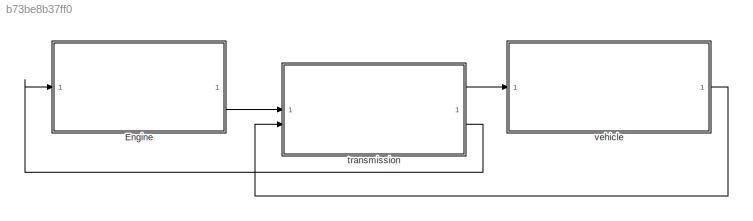
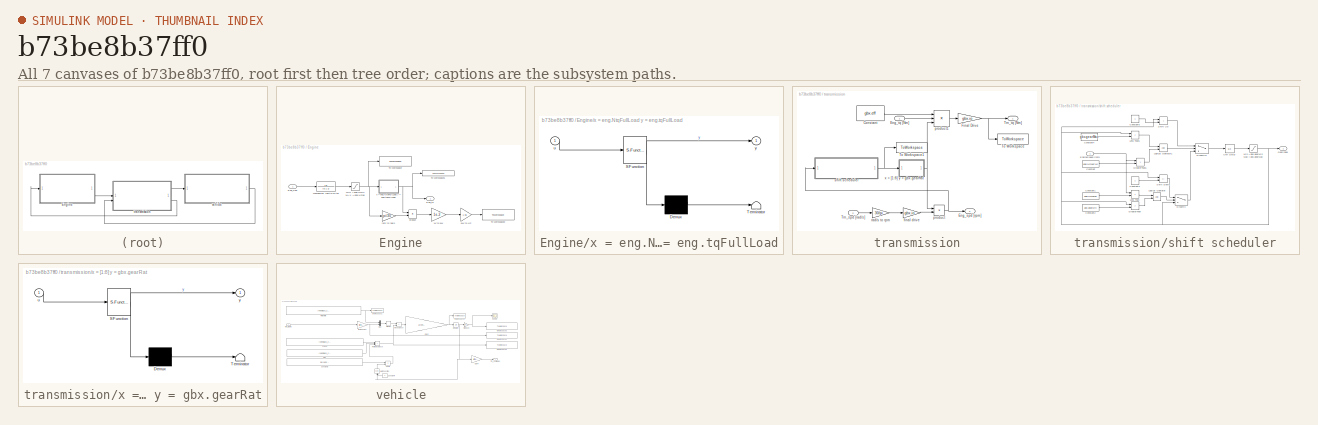
[diagram: thumbnail index - all 7 canvases of the model, root first then tree order]
MODEL slx_b73be8b37ff0
KIND model
CONFIG AbsTol = auto
CONFIG EnableMultiTasking = off
CONFIG FixedStep = auto
CONFIG MaxStep = auto
CONFIG MinStep = auto
CONFIG RelTol = 1e-3
CONFIG SampleTimeConstraint = Unconstrained
CONFIG SolverName = VariableStepAuto
CONFIG StartTime = 0.0
CONFIG StopTime = 50
BLOCK [SubSystem] Engine
BLOCK [Inport] Engine/Eng_Spd
BLOCK [Outport] Engine/Eng_tq
BLOCK [Saturate] Engine/MIN = eng.Nmin MAX = eng.Nmax
  LowerLimit = 1000
  UpperLimit = 6500
BLOCK [TransferFcn] Engine/Mechanical Inertia Filter
  Denominator = [0.1 1]
BLOCK [ToWorkspace] Engine/To Workspace
  FixptAsFi = on
  MaxDataPoints = inf
  SampleTime = -1
  SaveFormat = Timeseries
  VariableName = sEngSpd_rpm
BLOCK [ToWorkspace] Engine/To Workspace1
  FixptAsFi = on
  MaxDataPoints = inf
  SampleTime = -1
  SaveFormat = Timeseries
  VariableName = sEngTq_Nm
BLOCK [ToWorkspace] Engine/To Workspace2
  FixptAsFi = on
  MaxDataPoints = inf
  SampleTime = -1
  SaveFormat = Timeseries
  VariableName = sEngPwr_HP1
BLOCK [Gain] Engine/W to kW
  Gain = 1e-3
BLOCK [Gain] Engine/kW to HP
  Gain = 1.36
BLOCK [Product] Engine/product
BLOCK [Gain] Engine/rpm to rad//s
  Gain = pi/30
BLOCK [SubSystem] Engine/x = eng.NtqFullLoad y = eng.tqFullLoad
  ErrorFcn = Stateflow.Translate.translate
  LibrarySourceBlock = simulink/User-Defined\nFunctions/MATLAB Function
  PermitHierarchicalResolution = ExplicitOnly
  SFBlockType = MATLAB Function
  TreatAsAtomicUnit = on
BLOCK [Demux] Engine/x = eng.NtqFullLoad y = eng.tqFullLoad/ Demux 
  Outputs = 1
BLOCK [S-Function] Engine/x = eng.NtqFullLoad y = eng.tqFullLoad/ SFunction 
  EnableBusSupport = on
  FunctionName = sf_sfun
  PortCounts = [1 2]
  SFcnIsStateOwnerBlock = off
  SFunctionDeploymentMode = off
  Tag = Stateflow S-Function 2
BLOCK [Terminator] Engine/x = eng.NtqFullLoad y = eng.tqFullLoad/ Terminator 
BLOCK [Inport] Engine/x = eng.NtqFullLoad y = eng.tqFullLoad/u
BLOCK [Outport] Engine/x = eng.NtqFullLoad y = eng.tqFullLoad/y
BLOCK [SubSystem] transmission
BLOCK [Constant] transmission/Constant
  Value = gbx.eff
BLOCK [Outport] transmission/Eng_spd [rpm]
  Port = 2
BLOCK [Inport] transmission/Eng_tq [Nm]
BLOCK [Gain] transmission/Final Drive
  Gain = gbx.io
BLOCK [ToWorkspace] transmission/To Workspace
  FixptAsFi = on
  MaxDataPoints = inf
  SampleTime = -1
  SaveFormat = Timeseries
  VariableName = sTrnTq_Nm
BLOCK [ToWorkspace] transmission/To Workspace1
  FixptAsFi = on
  MaxDataPoints = inf
  SampleTime = -1
  SaveFormat = Timeseries
  VariableName = sGear
BLOCK [Inport] transmission/Trn_spd [rad//s]
  Port = 2
BLOCK [Outport] transmission/Trn_tq [Nm]
BLOCK [Gain] transmission/final drive
  Gain = gbx.io
BLOCK [Product] transmission/product
BLOCK [Product] transmission/product1
  Inputs = 3
BLOCK [Gain] transmission/rad//s to rpm
  Gain = 30/pi
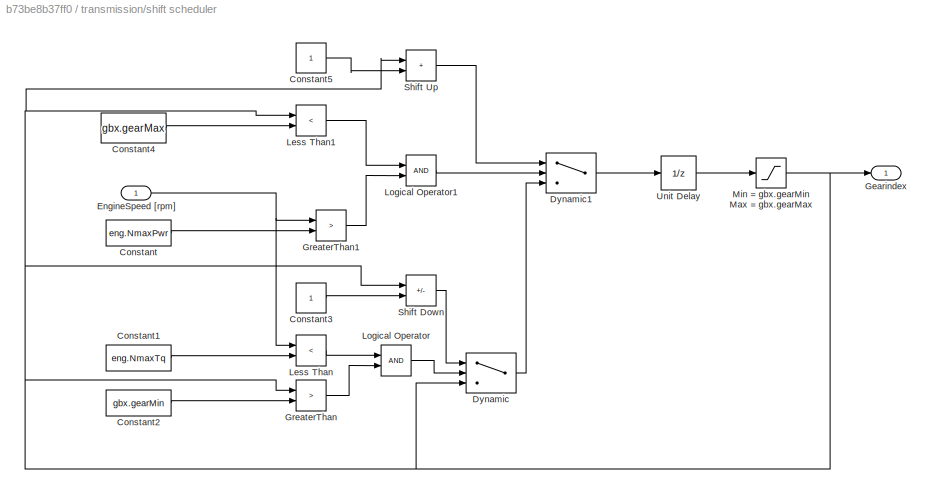
BLOCK [SubSystem] transmission/shift scheduler
BLOCK [Constant] transmission/shift scheduler/Constant
  Value = eng.NmaxPwr
BLOCK [Constant] transmission/shift scheduler/Constant1
  Value = eng.NmaxTq
BLOCK [Constant] transmission/shift scheduler/Constant2
  Value = gbx.gearMin
BLOCK [Constant] transmission/shift scheduler/Constant3
BLOCK [Constant] transmission/shift scheduler/Constant4
  Value = gbx.gearMax
BLOCK [Constant] transmission/shift scheduler/Constant5
BLOCK [Switch] transmission/shift scheduler/Dynamic
  Criteria = u2 > Threshold
  InputSameDT = off
  SaturateOnIntegerOverflow = off
BLOCK [Switch] transmission/shift scheduler/Dynamic1
  Criteria = u2 > Threshold
  InputSameDT = off
  SaturateOnIntegerOverflow = off
BLOCK [Inport] transmission/shift scheduler/EngineSpeed [rpm]
BLOCK [Outport] transmission/shift scheduler/Gearindex
BLOCK [RelationalOperator] transmission/shift scheduler/GreaterThan
  InputSameDT = off
  Operator = >
  OutDataTypeStr = boolean
  RndMeth = Simplest
BLOCK [RelationalOperator] transmission/shift scheduler/GreaterThan1
  InputSameDT = off
  Operator = >
  OutDataTypeStr = boolean
  RndMeth = Simplest
BLOCK [RelationalOperator] transmission/shift scheduler/Less Than
  InputSameDT = off
  Operator = <
  OutDataTypeStr = boolean
  RndMeth = Simplest
BLOCK [RelationalOperator] transmission/shift scheduler/Less Than1
  InputSameDT = off
  Operator = <
  OutDataTypeStr = boolean
  RndMeth = Simplest
BLOCK [Logic] transmission/shift scheduler/Logical Operator
  AllPortsSameDT = off
  OutDataTypeStr = boolean
BLOCK [Logic] transmission/shift scheduler/Logical Operator1
  AllPortsSameDT = off
  OutDataTypeStr = boolean
BLOCK [Saturate] transmission/shift scheduler/Min = gbx.gearMin Max = gbx.gearMax
  LowerLimit = 1
  UpperLimit = 8
BLOCK [Sum] transmission/shift scheduler/Shift Down
  IconShape = rectangular
  Inputs = +-
BLOCK [Sum] transmission/shift scheduler/Shift Up
  IconShape = rectangular
BLOCK [UnitDelay] transmission/shift scheduler/Unit Delay
  HasFrameUpgradeWarning = on
  SampleTime = -1
BLOCK [SubSystem] transmission/x = [1:8] y = gbx.gearRat
  ErrorFcn = Stateflow.Translate.translate
  LibrarySourceBlock = simulink/User-Defined\nFunctions/MATLAB Function
  PermitHierarchicalResolution = ExplicitOnly
  SFBlockType = MATLAB Function
  TreatAsAtomicUnit = on
BLOCK [Demux] transmission/x = [1:8] y = gbx.gearRat/ Demux 
  Outputs = 1
BLOCK [S-Function] transmission/x = [1:8] y = gbx.gearRat/ SFunction 
  EnableBusSupport = on
  FunctionName = sf_sfun
  PortCounts = [1 2]
  SFcnIsStateOwnerBlock = off
  SFunctionDeploymentMode = off
  Tag = Stateflow S-Function 1
BLOCK [Terminator] transmission/x = [1:8] y = gbx.gearRat/ Terminator 
BLOCK [Inport] transmission/x = [1:8] y = gbx.gearRat/u
BLOCK [Outport] transmission/x = [1:8] y = gbx.gearRat/y
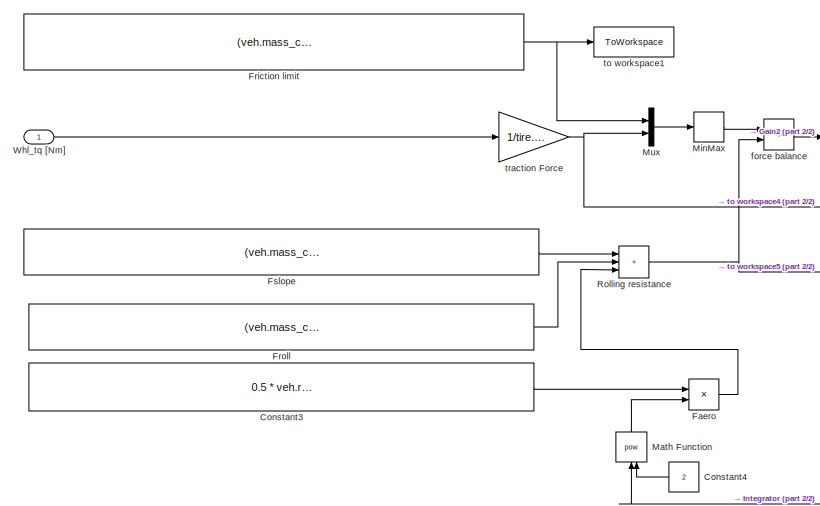
[diagram: vehicle - part 1/2, left side, full height]
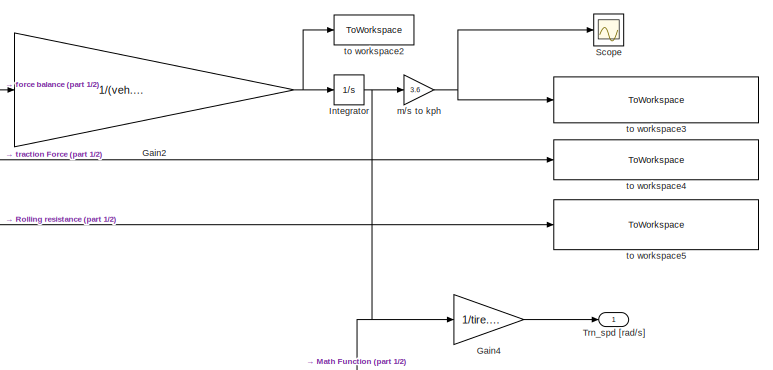
[diagram: vehicle - part 2/2, middle right region]
BLOCK [SubSystem] vehicle
BLOCK [Constant] vehicle/Constant3
  Value = 0.5 * veh.ro * veh.cd * veh.fa
BLOCK [Constant] vehicle/Constant4
  NameLocation = top
  Value = 2
BLOCK [Product] vehicle/Faero
BLOCK [Constant] vehicle/Friction limit
  Value = (veh.mass_curb * veh.mass_fm + veh.mass_driver) * veh.g * tire.miua * tire.load
BLOCK [Constant] vehicle/Froll
  Value = (veh.mass_curb * veh.mass_fm + veh.mass_driver) * veh.g * road.cr * cos(road.slope)
BLOCK [Constant] vehicle/Fslope
  Value = (veh.mass_curb * veh.mass_fm + veh.mass_driver) * veh.g * sin(road.slope)
BLOCK [Gain] vehicle/Gain2
  Gain = 1/(veh.mass_curb * veh.mass_fm + veh.mass_driver)
BLOCK [Gain] vehicle/Gain4
  Gain = 1/tire.rwd
BLOCK [Integrator] vehicle/Integrator
BLOCK [Math] vehicle/Math Function
  NameLocation = right
  Operator = pow
  SignedPower = on
BLOCK [MinMax] vehicle/MinMax
BLOCK [Mux] vehicle/Mux
  DisplayOption = bar
  Inputs = 2
BLOCK [Sum] vehicle/Rolling resistance
  IconShape = rectangular
  Inputs = +++
BLOCK [Scope] vehicle/Scope
  Floating = off
  NumInputPorts = 1
  ScopeSpecificationString = Simulink.scopes.TimeScopeBlockCfg('CurrentConfiguration', extmgr.ConfigurationSet(extmgr.Configuration('Core','General UI',true),extmgr.Configuration('Core','Source UI',true),extmgr.Configuration('Sources','WiredSimulink',true),extmgr.Configuration('Visuals','Time Domain',true,'SerializedDisplays',{struct('MinYLimReal','-31.71701','MaxYLimReal','285.45306','YLabelReal','','MinYLimMag','0.00000','M...<+1732ch>
BLOCK [Outport] vehicle/Trn_spd [rad//s]
BLOCK [Inport] vehicle/Whl_tq [Nm]
BLOCK [Sum] vehicle/force balance
  IconShape = rectangular
  Inputs = +-
BLOCK [Gain] vehicle/m//s to kph
  Gain = 3.6
BLOCK [ToWorkspace] vehicle/to workspace1
  FixptAsFi = on
  MaxDataPoints = inf
  SampleTime = -1
  SaveFormat = Timeseries
  VariableName = sWhlFricLim_N
BLOCK [ToWorkspace] vehicle/to workspace2
  FixptAsFi = on
  MaxDataPoints = inf
  SampleTime = -1
  SaveFormat = Timeseries
  VariableName = sVehAcc_mps2
BLOCK [ToWorkspace] vehicle/to workspace3
  FixptAsFi = on
  MaxDataPoints = inf
  SampleTime = -1
  SaveFormat = Timeseries
  VariableName = sVehSpd_kph
BLOCK [ToWorkspace] vehicle/to workspace4
  FixptAsFi = on
  MaxDataPoints = inf
  SampleTime = -1
  SaveFormat = Timeseries
  VariableName = sWhlTotTrc_N
BLOCK [ToWorkspace] vehicle/to workspace5
  FixptAsFi = on
  MaxDataPoints = inf
  SampleTime = -1
  SaveFormat = Timeseries
  VariableName = sWhlRolRes_N
BLOCK [Gain] vehicle/traction Force
  Gain = 1/tire.rwd
LINE Engine/Eng_Spd:1 -> Engine/Mechanical Inertia Filter:1
NET Engine/MIN = eng.Nmin MAX = eng.Nmax:1 -> Engine/To Workspace:1, Engine/rpm to rad//s:1, Engine/x = eng.NtqFullLoad y = eng.tqFullLoad:1
LINE Engine/Mechanical Inertia Filter:1 -> Engine/MIN = eng.Nmin MAX = eng.Nmax:1
LINE Engine/W to kW:1 -> Engine/kW to HP:1
LINE Engine/kW to HP:1 -> Engine/To Workspace2:1
LINE Engine/product:1 -> Engine/W to kW:1
LINE Engine/rpm to rad//s:1 -> Engine/product:2
NET Engine/x = eng.NtqFullLoad y = eng.tqFullLoad:1 -> Engine/Eng_tq:1, Engine/To Workspace1:1, Engine/product:1
LINE Engine:1 -> transmission:1
LINE transmission/Constant:1 -> transmission/product1:1
LINE transmission/Eng_tq [Nm]:1 -> transmission/product1:2
NET transmission/Final Drive:1 -> transmission/To Workspace:1, transmission/Trn_tq [Nm]:1
LINE transmission/Trn_spd [rad//s]:1 -> transmission/rad//s to rpm:1
LINE transmission/final drive:1 -> transmission/product:2
LINE transmission/product1:1 -> transmission/Final Drive:1
NET transmission/product:1 -> transmission/Eng_spd [rpm]:1, transmission/shift scheduler:1
LINE transmission/rad//s to rpm:1 -> transmission/final drive:1
LINE transmission/shift scheduler/Constant1:1 -> transmission/shift scheduler/Less Than:2
LINE transmission/shift scheduler/Constant2:1 -> transmission/shift scheduler/GreaterThan:2
LINE transmission/shift scheduler/Constant3:1 -> transmission/shift scheduler/Shift Down:2
LINE transmission/shift scheduler/Constant4:1 -> transmission/shift scheduler/Less Than1:2
LINE transmission/shift scheduler/Constant5:1 -> transmission/shift scheduler/Shift Up:2
LINE transmission/shift scheduler/Constant:1 -> transmission/shift scheduler/GreaterThan1:2
LINE transmission/shift scheduler/Dynamic1:1 -> transmission/shift scheduler/Unit Delay:1
LINE transmission/shift scheduler/Dynamic:1 -> transmission/shift scheduler/Dynamic1:3
NET transmission/shift scheduler/EngineSpeed [rpm]:1 -> transmission/shift scheduler/GreaterThan1:1, transmission/shift scheduler/Less Than:1
LINE transmission/shift scheduler/GreaterThan1:1 -> transmission/shift scheduler/Logical Operator1:2
LINE transmission/shift scheduler/GreaterThan:1 -> transmission/shift scheduler/Logical Operator:2
LINE transmission/shift scheduler/Less Than1:1 -> transmission/shift scheduler/Logical Operator1:1
LINE transmission/shift scheduler/Less Than:1 -> transmission/shift scheduler/Logical Operator:1
LINE transmission/shift scheduler/Logical Operator1:1 -> transmission/shift scheduler/Dynamic1:2
LINE transmission/shift scheduler/Logical Operator:1 -> transmission/shift scheduler/Dynamic:2
NET transmission/shift scheduler/Min = gbx.gearMin Max = gbx.gearMax:1 -> transmission/shift scheduler/Dynamic:3, transmission/shift scheduler/Gearindex:1, transmission/shift scheduler/GreaterThan:1, transmission/shift scheduler/Less Than1:1, transmission/shift scheduler/Shift Down:1, transmission/shift scheduler/Shift Up:1
LINE transmission/shift scheduler/Shift Down:1 -> transmission/shift scheduler/Dynamic:1
LINE transmission/shift scheduler/Shift Up:1 -> transmission/shift scheduler/Dynamic1:1
LINE transmission/shift scheduler/Unit Delay:1 -> transmission/shift scheduler/Min = gbx.gearMin Max = gbx.gearMax:1
NET transmission/shift scheduler:1 -> transmission/To Workspace1:1, transmission/x = [1:8] y = gbx.gearRat:1
NET transmission/x = [1:8] y = gbx.gearRat:1 -> transmission/product1:3, transmission/product:1
LINE transmission:1 -> vehicle:1
LINE transmission:2 -> Engine:1
LINE vehicle/Constant3:1 -> vehicle/Faero:1
LINE vehicle/Constant4:1 -> vehicle/Math Function:2
LINE vehicle/Faero:1 -> vehicle/Rolling resistance:3
NET vehicle/Friction limit:1 -> vehicle/Mux:1, vehicle/to workspace1:1
LINE vehicle/Froll:1 -> vehicle/Rolling resistance:2
LINE vehicle/Fslope:1 -> vehicle/Rolling resistance:1
NET vehicle/Gain2:1 -> vehicle/Integrator:1, vehicle/to workspace2:1
LINE vehicle/Gain4:1 -> vehicle/Trn_spd [rad//s]:1
NET vehicle/Integrator:1 -> vehicle/Gain4:1, vehicle/Math Function:1, vehicle/m//s to kph:1
LINE vehicle/Math Function:1 -> vehicle/Faero:2
LINE vehicle/MinMax:1 -> vehicle/force balance:1
LINE vehicle/Mux:1 -> vehicle/MinMax:1
NET vehicle/Rolling resistance:1 -> vehicle/force balance:2, vehicle/to workspace5:1
LINE vehicle/Whl_tq [Nm]:1 -> vehicle/traction Force:1
LINE vehicle/force balance:1 -> vehicle/Gain2:1
NET vehicle/m//s to kph:1 -> vehicle/Scope:1, vehicle/to workspace3:1
NET vehicle/traction Force:1 -> vehicle/Mux:2, vehicle/to workspace4:1
LINE vehicle:1 -> transmission:2
note: NET lines group one-source signal fan-out (src -> all destinations, sorted); 1:1 wires keep LINE
CHART Engine/x = eng.NtqFullLoad
y = eng.tqFullLoad states=1 transitions=1
  STATE_LABEL 'eML_blk_kernel()'
  STATE_LABEL 'SCRIPT:\nfunction y = fcn(u)\nNe= [1000 2020 2990 3500 5000 6500];\nTe= [306 385 439 450 450 367];\np = polyfit(Ne,Te,4);\ny = p(1)*u^4 + p(2)*u^3 + p(3)*u^2 + p(4)*u + p(5);\nend'
CHART transmission/x = [1:8]
y = gbx.gearRat states=1 transitions=1
  STATE_LABEL 'eML_blk_kernel()'
  STATE_LABEL 'SCRIPT:\nfunction y = fcn(u)\nx = [1 2 3 4 5 6 7 8];\ngbx.gearRat = [4.71 3.14 2.11 1.67 1.29 1.00 0.84 0.67];\np = polyfit(x,gbx.gearRat,4);\ny = p(1)*u^4 + p(2)*u^3 + p(3)*u^2 + p(4)*u + p(5);\nend\n'
CHART  states=0 transitions=0
CHART  states=0 transitions=0
